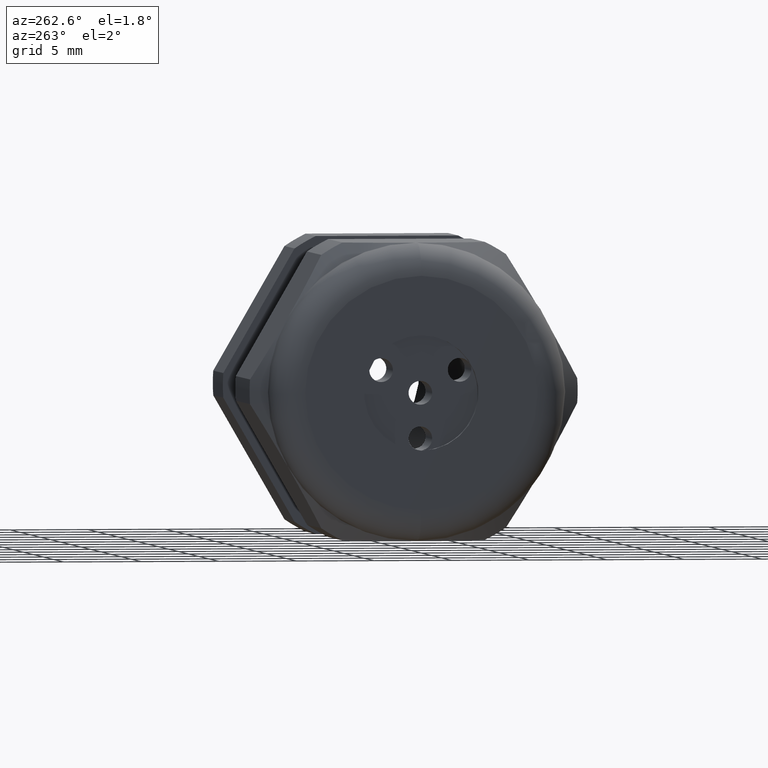
[diagram: clean part render]
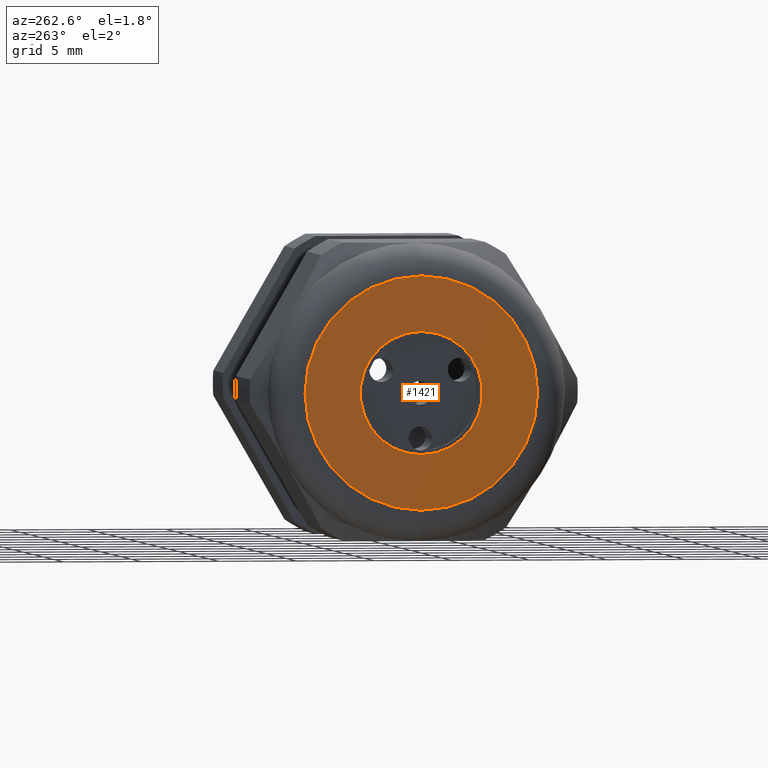
[diagram: same view with one face highlighted and labeled with its STEP entity id]
A machine part, auxiliary view. The second image highlights one B-rep face of the part: STEP entity #1421.
In plain terms, the highlighted planar face has unit normal (-1, 0, 0).
Its self-contained STEP definition (entity closure, byte-faithful):
#656 = VERTEX_POINT ( 'NONE', #3228 ) ;
#658 = EDGE_CURVE ( 'NONE', #659, #656, #3227, .T. ) ;
#659 = VERTEX_POINT ( 'NONE', #3222 ) ;
#716 = EDGE_CURVE ( 'NONE', #717, #718, #3313, .T. ) ;
#717 = VERTEX_POINT ( 'NONE', #3309 ) ;
#718 = VERTEX_POINT ( 'NONE', #3371 ) ;
#1421 = ADVANCED_FACE ( 'NONE', ( #4703, #4697 ), #4760, .T. ) ;
#1422 = EDGE_LOOP ( 'NONE', ( #1423, #1424 ) ) ;
#1423 = ORIENTED_EDGE ( 'NONE', *, *, #658, .T. ) ;
#1424 = ORIENTED_EDGE ( 'NONE', *, *, #1425, .T. ) ;
#1425 = EDGE_CURVE ( 'NONE', #656, #659, #4755, .T. ) ;
#1426 = EDGE_LOOP ( 'NONE', ( #1427, #1429 ) ) ;
#1427 = ORIENTED_EDGE ( 'NONE', *, *, #1428, .T. ) ;
#1428 = EDGE_CURVE ( 'NONE', #718, #717, #4751, .T. ) ;
#1429 = ORIENTED_EDGE ( 'NONE', *, *, #716, .T. ) ;
#3222 = CARTESIAN_POINT ( 'NONE',  ( -1.179999999999999900, 0.0000000000000000000, 0.2950000000000001000 ) ) ;
#3223 = DIRECTION ( 'NONE',  ( 0.0000000000000000000, 0.0000000000000000000, 1.000000000000000000 ) ) ;
#3224 = DIRECTION ( 'NONE',  ( -1.000000000000000000, 0.0000000000000000000, 0.0000000000000000000 ) ) ;
#3225 = CARTESIAN_POINT ( 'NONE',  ( -1.179999999999999900, 0.0000000000000000000, 0.0000000000000000000 ) ) ;
#3226 = AXIS2_PLACEMENT_3D ( 'NONE', #3225, #3224, #3223 ) ;
#3227 = CIRCLE ( 'NONE', #3226, 0.2950000000000001000 ) ;
#3228 = CARTESIAN_POINT ( 'NONE',  ( -1.179999999999999900, 4.102566777143634000E-017, -0.2950000000000001000 ) ) ;
#3309 = CARTESIAN_POINT ( 'NONE',  ( -1.179999999999999900, 1.898202538678397300E-017, 0.1550000000000000000 ) ) ;
#3310 = DIRECTION ( 'NONE',  ( 0.0000000000000000000, 0.0000000000000000000, -1.000000000000000000 ) ) ;
#3311 = DIRECTION ( 'NONE',  ( 1.000000000000000000, 0.0000000000000000000, 0.0000000000000000000 ) ) ;
#3312 = AXIS2_PLACEMENT_3D ( 'NONE', #3319, #3311, #3310 ) ;
#3313 = CIRCLE ( 'NONE', #3312, 0.1550000000000000000 ) ;
#3319 = CARTESIAN_POINT ( 'NONE',  ( -1.179999999999999900, 0.0000000000000000000, 0.0000000000000000000 ) ) ;
#3371 = CARTESIAN_POINT ( 'NONE',  ( -1.179999999999999900, 0.0000000000000000000, -0.1550000000000000000 ) ) ;
#4697 = FACE_BOUND ( 'NONE', #1426, .T. ) ;
#4703 = FACE_OUTER_BOUND ( 'NONE', #1422, .T. ) ;
#4747 = DIRECTION ( 'NONE',  ( 0.0000000000000000000, 0.0000000000000000000, -1.000000000000000000 ) ) ;
#4748 = DIRECTION ( 'NONE',  ( 1.000000000000000000, 0.0000000000000000000, 0.0000000000000000000 ) ) ;
#4749 = CARTESIAN_POINT ( 'NONE',  ( -1.179999999999999900, 0.0000000000000000000, 0.0000000000000000000 ) ) ;
#4750 = AXIS2_PLACEMENT_3D ( 'NONE', #4749, #4748, #4747 ) ;
#4751 = CIRCLE ( 'NONE', #4750, 0.1550000000000000000 ) ;
#4752 = DIRECTION ( 'NONE',  ( 0.0000000000000000000, 0.0000000000000000000, 1.000000000000000000 ) ) ;
#4753 = DIRECTION ( 'NONE',  ( -1.000000000000000000, 0.0000000000000000000, 0.0000000000000000000 ) ) ;
#4754 = AXIS2_PLACEMENT_3D ( 'NONE', #4761, #4753, #4752 ) ;
#4755 = CIRCLE ( 'NONE', #4754, 0.2950000000000001000 ) ;
#4756 = DIRECTION ( 'NONE',  ( 0.0000000000000000000, 0.0000000000000000000, 1.000000000000000000 ) ) ;
#4757 = DIRECTION ( 'NONE',  ( -1.000000000000000000, 0.0000000000000000000, 0.0000000000000000000 ) ) ;
#4758 = CARTESIAN_POINT ( 'NONE',  ( -1.179999999999999900, 0.3750000000000000600, 0.0000000000000000000 ) ) ;
#4759 = AXIS2_PLACEMENT_3D ( 'NONE', #4758, #4757, #4756 ) ;
#4760 = PLANE ( 'NONE',  #4759 ) ;
#4761 = CARTESIAN_POINT ( 'NONE',  ( -1.179999999999999900, 0.0000000000000000000, 0.0000000000000000000 ) ) ;